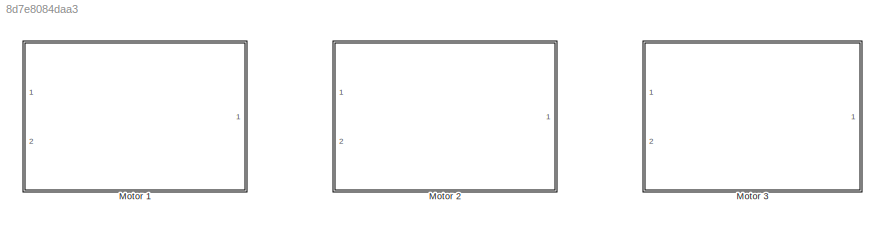
MODEL slx_8d7e8084daa3
KIND model
CONFIG AbsTol = auto
CONFIG EnableMultiTasking = off
CONFIG FixedStep = auto
CONFIG MaxStep = auto
CONFIG MinStep = auto
CONFIG RelTol = 1e-3
CONFIG SampleTimeConstraint = Unconstrained
CONFIG SolverName = VariableStepAuto
CONFIG StartTime = 0.0
CONFIG StopTime = 10.0
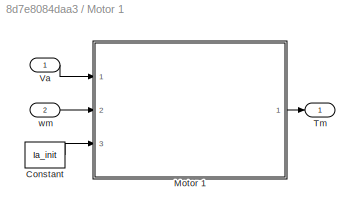
BLOCK [SubSystem] Motor 1
  Ports = [2, 1]
  RequestExecContextInheritance = off
BLOCK [Constant] Motor 1/Constant
  Value = Ia_init
BLOCK [ModelReference] Motor 1/Motor 1
  CopyOfModelProtected = on
  ModelNameDialog = Motor_1
  ModelReferenceVersion = 1.18
  Ports = [3, 1]
BLOCK [Outport] Motor 1/Tm
BLOCK [Inport] Motor 1/Va
BLOCK [Inport] Motor 1/wm
  Port = 2
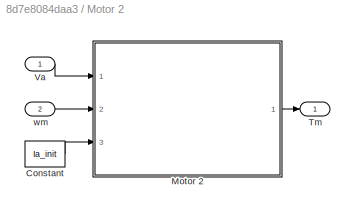
BLOCK [SubSystem] Motor 2
  Ports = [2, 1]
  RequestExecContextInheritance = off
BLOCK [Constant] Motor 2/Constant
  Value = Ia_init
BLOCK [ModelReference] Motor 2/Motor 2
  CopyOfModelProtected = on
  ModelNameDialog = Motor_2
  ModelReferenceVersion = 1.19
  Ports = [3, 1]
BLOCK [Outport] Motor 2/Tm
BLOCK [Inport] Motor 2/Va
BLOCK [Inport] Motor 2/wm
  Port = 2
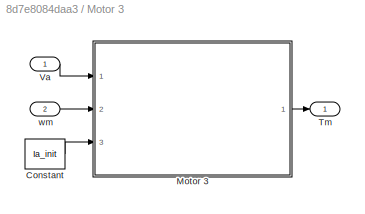
BLOCK [SubSystem] Motor 3
  Ports = [2, 1]
  RequestExecContextInheritance = off
BLOCK [Constant] Motor 3/Constant
  Value = Ia_init
BLOCK [ModelReference] Motor 3/Motor 3
  CopyOfModelProtected = on
  ModelNameDialog = Motor_3
  ModelReferenceVersion = 1.20
  Ports = [3, 1]
BLOCK [Outport] Motor 3/Tm
BLOCK [Inport] Motor 3/Va
BLOCK [Inport] Motor 3/wm
  Port = 2
LINE Motor 1/Constant:1 -> Motor 1/Motor 1:3
LINE Motor 1/Motor 1:1 -> Motor 1/Tm:1
LINE Motor 1/Va:1 -> Motor 1/Motor 1:1
LINE Motor 1/wm:1 -> Motor 1/Motor 1:2
LINE Motor 2/Constant:1 -> Motor 2/Motor 2:3
LINE Motor 2/Motor 2:1 -> Motor 2/Tm:1
LINE Motor 2/Va:1 -> Motor 2/Motor 2:1
LINE Motor 2/wm:1 -> Motor 2/Motor 2:2
LINE Motor 3/Constant:1 -> Motor 3/Motor 3:3
LINE Motor 3/Motor 3:1 -> Motor 3/Tm:1
LINE Motor 3/Va:1 -> Motor 3/Motor 3:1
LINE Motor 3/wm:1 -> Motor 3/Motor 3:2
